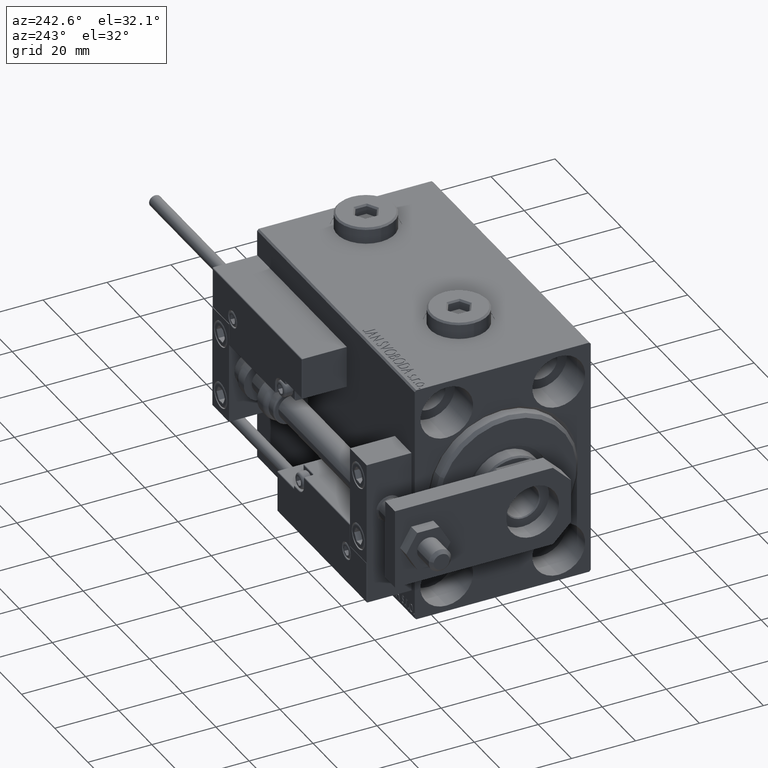
[diagram: clean part render]
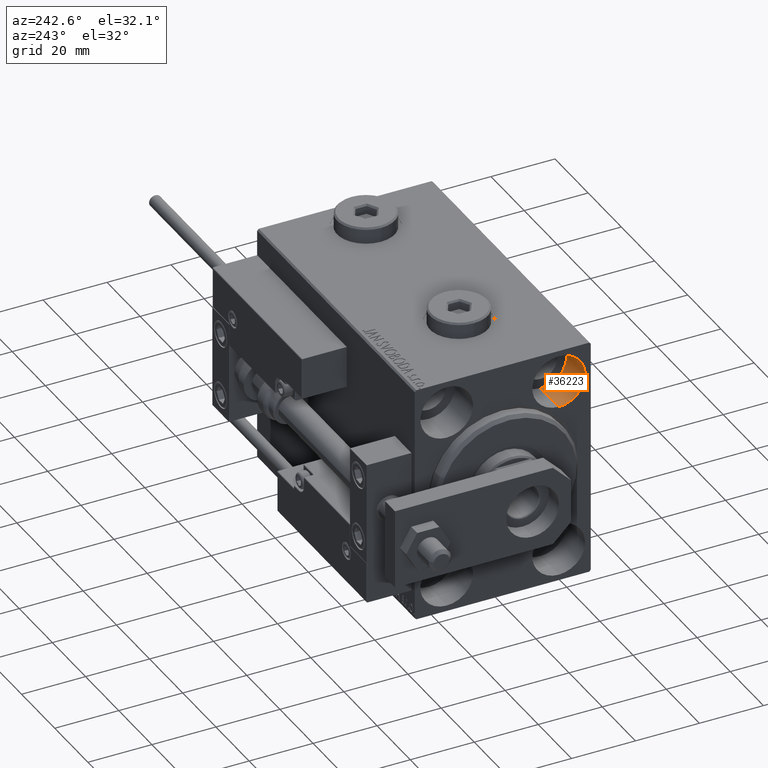
[diagram: same view with one face highlighted and labeled with its STEP entity id]
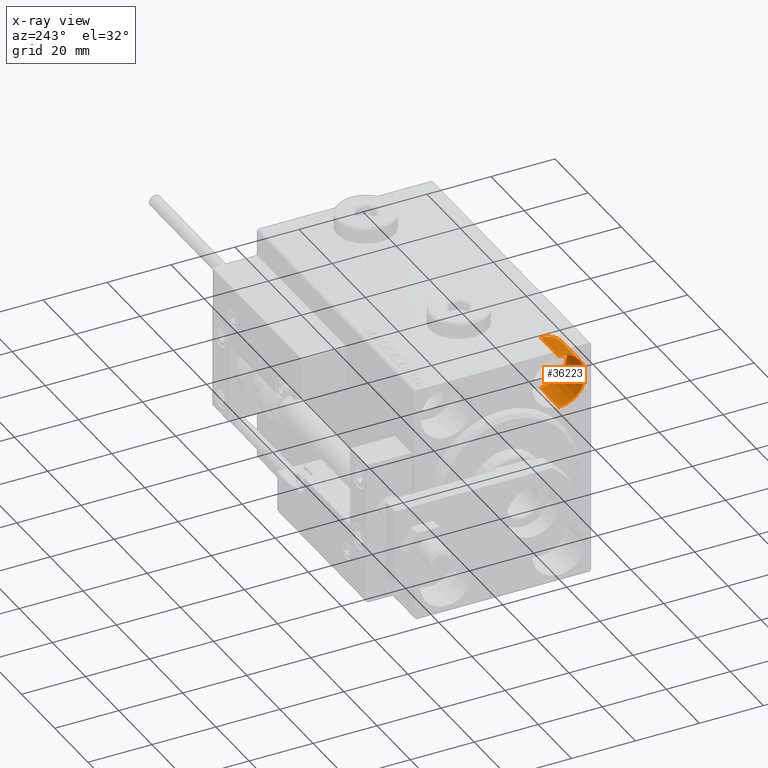
[diagram: x-ray of the same camera — body ghosted, the highlighted face saturated]
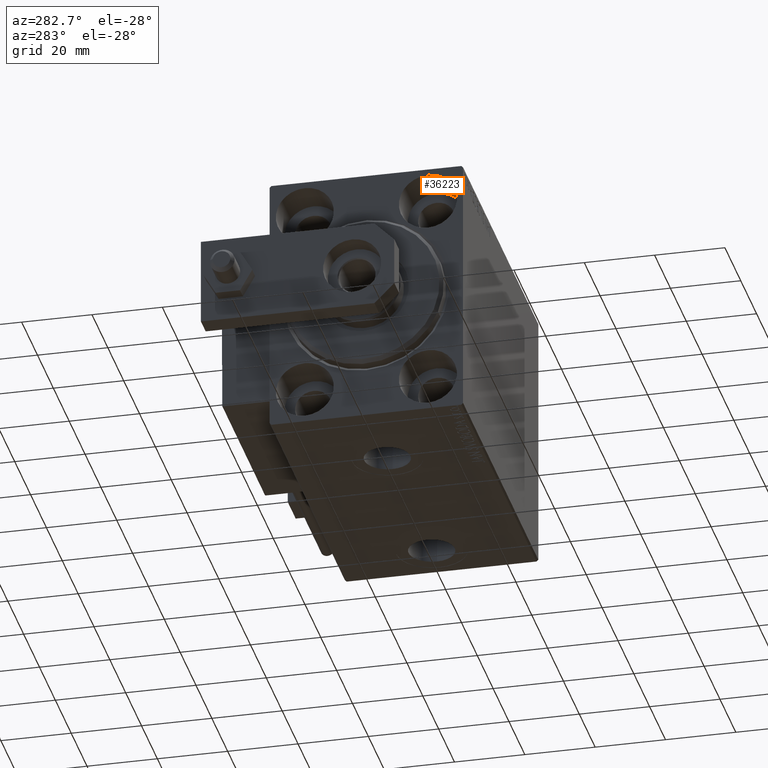
[diagram: same view with one face highlighted and labeled with its STEP entity id]
A machine part, auxiliary view. The second image highlights one B-rep face of the part: STEP entity #36223.
The next image is the same camera in x-ray: the body ghosted, the highlighted face saturated — about 0% of this face is hidden behind the body in this view.
A second angle (auxiliary view) of the same face is appended — the face is thin or edge-on in the first view.
In plain terms, the highlighted cylindrical surface (edge-blend (fillet) strip) has radius 8.25 mm, axis along (-1, -0, -0).
Its self-contained STEP definition (entity closure, byte-faithful):
#2435 = LINE ( 'NONE', #6851, #48348 ) ;
#2850 = ORIENTED_EDGE ( 'NONE', *, *, #20062, .F. ) ;
#3041 = DIRECTION ( 'NONE',  ( -1.000000000000000000, 0.000000000000000000, 0.000000000000000000 ) ) ;
#3274 = EDGE_LOOP ( 'NONE', ( #2850, #40725, #6340, #30300 ) ) ;
#6340 = ORIENTED_EDGE ( 'NONE', *, *, #34253, .T. ) ;
#6851 = CARTESIAN_POINT ( 'NONE',  ( 11.00000000000000000, -17.49999999999999645, 35.74999999999999289 ) ) ;
#7100 = DIRECTION ( 'NONE',  ( -1.000000000000000000, -0.000000000000000000, -0.000000000000000000 ) ) ;
#11965 = VERTEX_POINT ( 'NONE', #29833 ) ;
#13397 = LINE ( 'NONE', #37119, #48920 ) ;
#14382 = CARTESIAN_POINT ( 'NONE',  ( 11.00000000000000000, -17.49999999999999645, 19.25000000000000000 ) ) ;
#14937 = CARTESIAN_POINT ( 'NONE',  ( 11.00000000000000000, -17.49999999999999645, 27.49999999999999645 ) ) ;
#15044 = DIRECTION ( 'NONE',  ( 0.000000000000000000, 0.000000000000000000, 1.000000000000000000 ) ) ;
#16003 = AXIS2_PLACEMENT_3D ( 'NONE', #23134, #3041, #15044 ) ;
#17062 = DIRECTION ( 'NONE',  ( -1.000000000000000000, -0.000000000000000000, -0.000000000000000000 ) ) ;
#17728 = AXIS2_PLACEMENT_3D ( 'NONE', #14937, #7100, #23029 ) ;
#18848 = FACE_OUTER_BOUND ( 'NONE', #3274, .T. ) ;
#19531 = DIRECTION ( 'NONE',  ( -1.000000000000000000, 0.000000000000000000, 0.000000000000000000 ) ) ;
#20062 = EDGE_CURVE ( 'NONE', #41560, #11965, #27178, .T. ) ;
#20306 = CARTESIAN_POINT ( 'NONE',  ( 0.000000000000000000, -17.49999999999999645, 35.74999999999999289 ) ) ;
#21326 = AXIS2_PLACEMENT_3D ( 'NONE', #51318, #19531, #43766 ) ;
#23029 = DIRECTION ( 'NONE',  ( 0.000000000000000000, 0.000000000000000000, 1.000000000000000000 ) ) ;
#23134 = CARTESIAN_POINT ( 'NONE',  ( 0.000000000000000000, -17.49999999999999645, 27.49999999999999645 ) ) ;
#23367 = EDGE_CURVE ( 'NONE', #41560, #30384, #13397, .T. ) ;
#27178 = CIRCLE ( 'NONE', #21326, 8.249999999999992895 ) ;
#29833 = CARTESIAN_POINT ( 'NONE',  ( 11.00000000000000000, -17.49999999999999645, 35.74999999999999289 ) ) ;
#30300 = ORIENTED_EDGE ( 'NONE', *, *, #30840, .F. ) ;
#30384 = VERTEX_POINT ( 'NONE', #36318 ) ;
#30840 = EDGE_CURVE ( 'NONE', #11965, #43851, #2435, .T. ) ;
#34253 = EDGE_CURVE ( 'NONE', #30384, #43851, #35150, .T. ) ;
#35150 = CIRCLE ( 'NONE', #16003, 8.249999999999992895 ) ;
#36223 = ADVANCED_FACE ( 'NONE', ( #18848 ), #50620, .F. ) ;
#36318 = CARTESIAN_POINT ( 'NONE',  ( 0.000000000000000000, -17.49999999999999645, 19.25000000000000000 ) ) ;
#37119 = CARTESIAN_POINT ( 'NONE',  ( 11.00000000000000000, -17.49999999999999645, 19.25000000000000000 ) ) ;
#40725 = ORIENTED_EDGE ( 'NONE', *, *, #23367, .T. ) ;
#41560 = VERTEX_POINT ( 'NONE', #14382 ) ;
#43766 = DIRECTION ( 'NONE',  ( 0.000000000000000000, 0.000000000000000000, 1.000000000000000000 ) ) ;
#43851 = VERTEX_POINT ( 'NONE', #20306 ) ;
#48348 = VECTOR ( 'NONE', #49850, 1000.000000000000000 ) ;
#48920 = VECTOR ( 'NONE', #17062, 1000.000000000000000 ) ;
#49850 = DIRECTION ( 'NONE',  ( -1.000000000000000000, -0.000000000000000000, -0.000000000000000000 ) ) ;
#50620 = CYLINDRICAL_SURFACE ( 'NONE', #17728, 8.249999999999992895 ) ;
#51318 = CARTESIAN_POINT ( 'NONE',  ( 11.00000000000000000, -17.49999999999999645, 27.49999999999999645 ) ) ;